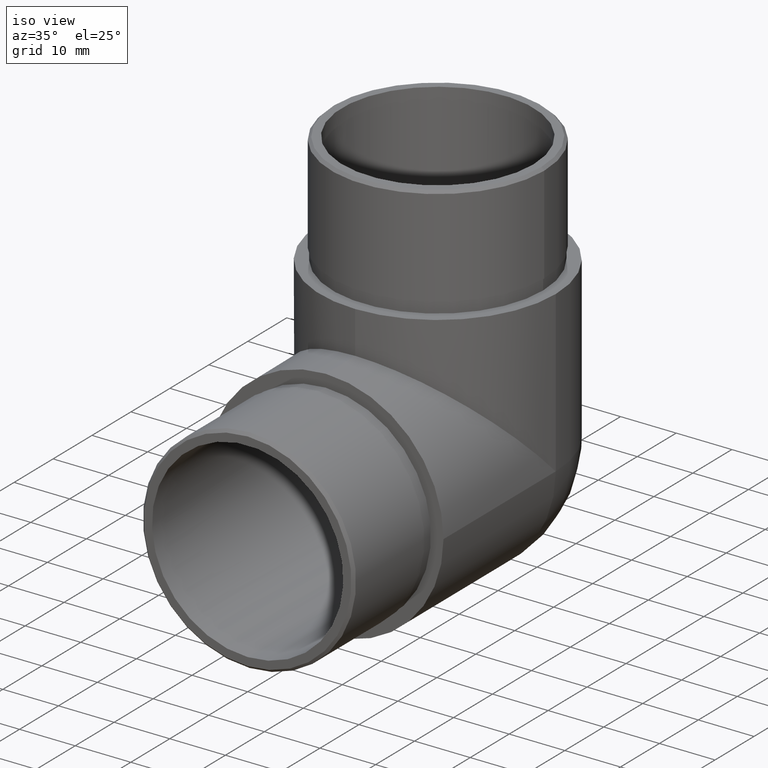
[diagram: clean part render]
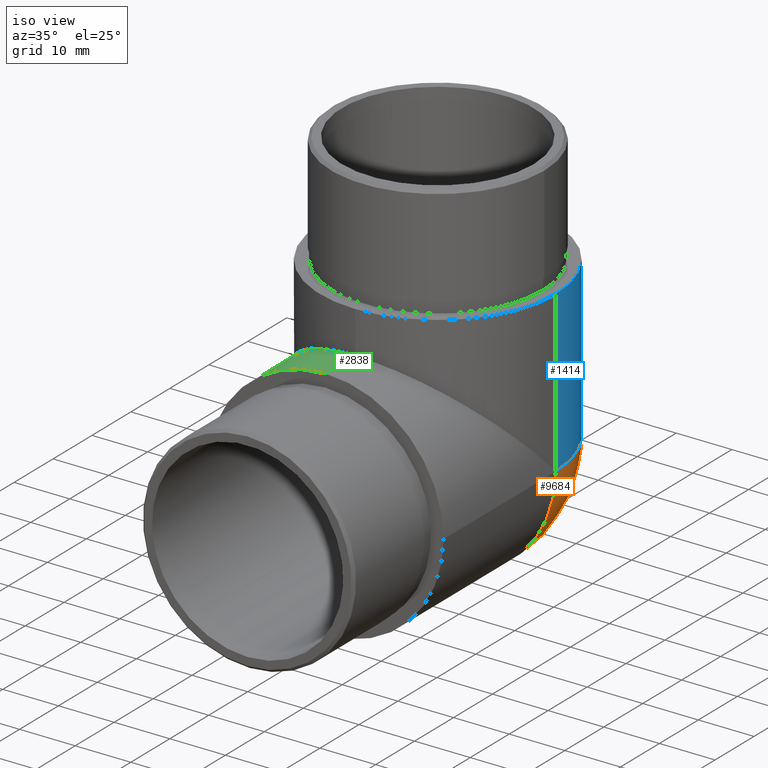
[diagram: same view with three faces highlighted in distinct colors, each labeled with its STEP entity id]
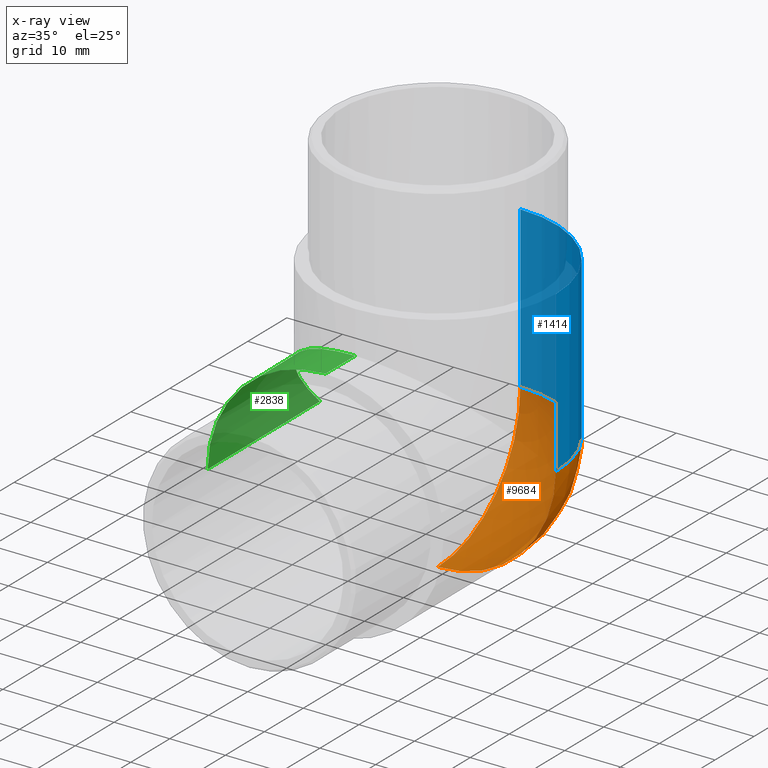
[diagram: x-ray of the same camera — body ghosted, the three highlighted faces saturated]
A machine part, iso view with three faces highlighted in distinct colors.
The next image is the same camera in x-ray (body ghosted, the three faces saturated) — at least one of them is partly hidden behind the body in this view.
Their STEP definitions:

[orange] entity #9684 — the highlighted spherical surface has radius 21.2 mm.
#91 = CARTESIAN_POINT ( 'NONE',  ( -6.938893903907228400E-015, 50.00000000000000000, 21.19999999999999600 ) ) ;
#791 = CIRCLE ( 'NONE', #8991, 21.19999999999999900 ) ;
#1215 = CIRCLE ( 'NONE', #9865, 21.19999999999999900 ) ;
#1295 = DIRECTION ( 'NONE',  ( 0.0000000000000000000, 0.0000000000000000000, 1.000000000000000000 ) ) ;
#1344 = DIRECTION ( 'NONE',  ( -1.000000000000000000, 0.0000000000000000000, -3.273063162220390800E-016 ) ) ;
#1373 = CARTESIAN_POINT ( 'NONE',  ( 0.0000000000000000000, 28.80000000000000800, 21.19999999999999600 ) ) ;
#1689 = AXIS2_PLACEMENT_3D ( 'NONE', #5706, #9517, #1835 ) ;
#1727 = FACE_OUTER_BOUND ( 'NONE', #11694, .T. ) ;
#1835 = DIRECTION ( 'NONE',  ( 0.0000000000000000000, 0.0000000000000000000, -1.000000000000000000 ) ) ;
#1916 = ORIENTED_EDGE ( 'NONE', *, *, #7499, .T. ) ;
#2267 = ORIENTED_EDGE ( 'NONE', *, *, #7500, .F. ) ;
#3635 = ORIENTED_EDGE ( 'NONE', *, *, #4048, .T. ) ;
#4048 = EDGE_CURVE ( 'NONE', #8257, #6328, #8404, .T. ) ;
#4080 = CARTESIAN_POINT ( 'NONE',  ( -6.938893903907228400E-015, 28.80000000000000800, 21.20000000000000300 ) ) ;
#5706 = CARTESIAN_POINT ( 'NONE',  ( 0.0000000000000000000, 28.80000000000000800, 21.19999999999999600 ) ) ;
#6170 = CARTESIAN_POINT ( 'NONE',  ( 3.469446951953614200E-015, 28.80000000000000800, 2.063529856563289800E-015 ) ) ;
#6328 = VERTEX_POINT ( 'NONE', #91 ) ;
#6467 = CARTESIAN_POINT ( 'NONE',  ( 21.19999999999999600, 28.80000000000001100, 21.19999999999999900 ) ) ;
#6910 = DIRECTION ( 'NONE',  ( 3.273063162220390800E-016, 0.0000000000000000000, -1.000000000000000000 ) ) ;
#6952 = CARTESIAN_POINT ( 'NONE',  ( -3.469446951953614200E-015, 28.80000000000000400, 21.19999999999999600 ) ) ;
#7060 = SPHERICAL_SURFACE ( 'NONE', #12068, 21.19999999999999900 ) ;
#7499 = EDGE_CURVE ( 'NONE', #6328, #10876, #1215, .T. ) ;
#7500 = EDGE_CURVE ( 'NONE', #8257, #10876, #791, .T. ) ;
#8065 = DIRECTION ( 'NONE',  ( 0.0000000000000000000, 1.000000000000000000, -0.0000000000000000000 ) ) ;
#8257 = VERTEX_POINT ( 'NONE', #6170 ) ;
#8404 = CIRCLE ( 'NONE', #1689, 21.19999999999999900 ) ;
#8781 = DIRECTION ( 'NONE',  ( 0.0000000000000000000, 0.0000000000000000000, -1.000000000000000000 ) ) ;
#8943 = DIRECTION ( 'NONE',  ( 0.0000000000000000000, -1.000000000000000000, 0.0000000000000000000 ) ) ;
#8991 = AXIS2_PLACEMENT_3D ( 'NONE', #4080, #8943, #8781 ) ;
#9517 = DIRECTION ( 'NONE',  ( 1.000000000000000000, 0.0000000000000000000, 0.0000000000000000000 ) ) ;
#9684 = ADVANCED_FACE ( 'NONE', ( #1727 ), #7060, .T. ) ;
#9865 = AXIS2_PLACEMENT_3D ( 'NONE', #6952, #6910, #1344 ) ;
#10876 = VERTEX_POINT ( 'NONE', #6467 ) ;
#11694 = EDGE_LOOP ( 'NONE', ( #3635, #1916, #2267 ) ) ;
#12068 = AXIS2_PLACEMENT_3D ( 'NONE', #1373, #8065, #1295 ) ;

[blue] entity #1414 — the highlighted cylindrical surface (partial cylindrical patch) has radius 21.2 mm, axis along (0, 0, 1).
#91 = CARTESIAN_POINT ( 'NONE',  ( -6.938893903907228400E-015, 50.00000000000000000, 21.19999999999999600 ) ) ;
#1149 = ORIENTED_EDGE ( 'NONE', *, *, #7499, .F. ) ;
#1150 = VERTEX_POINT ( 'NONE', #1578 ) ;
#1203 = LINE ( 'NONE', #4599, #11328 ) ;
#1215 = CIRCLE ( 'NONE', #9865, 21.19999999999999900 ) ;
#1344 = DIRECTION ( 'NONE',  ( -1.000000000000000000, 0.0000000000000000000, -3.273063162220390800E-016 ) ) ;
#1414 = ADVANCED_FACE ( 'NONE', ( #3519 ), #6764, .T. ) ;
#1578 = CARTESIAN_POINT ( 'NONE',  ( -3.469446951953614200E-015, 50.00000000000000000, 50.00000000000000000 ) ) ;
#2483 = DIRECTION ( 'NONE',  ( 1.000000000000000000, 0.0000000000000000000, 0.0000000000000000000 ) ) ;
#2986 = CARTESIAN_POINT ( 'NONE',  ( -3.469446951953614200E-015, 28.80000000000000800, 1.818672477690387500 ) ) ;
#3359 = EDGE_CURVE ( 'NONE', #11824, #1150, #4683, .T. ) ;
#3435 = CARTESIAN_POINT ( 'NONE',  ( -3.469446951953614200E-015, 28.80000000000000800, 50.00000000000000000 ) ) ;
#3519 = FACE_OUTER_BOUND ( 'NONE', #9625, .T. ) ;
#4599 = CARTESIAN_POINT ( 'NONE',  ( 3.469446951953614200E-015, 50.00000000000000000, 2.063529856563289800E-015 ) ) ;
#4683 = CIRCLE ( 'NONE', #7000, 21.19999999999999900 ) ;
#6328 = VERTEX_POINT ( 'NONE', #91 ) ;
#6331 = DIRECTION ( 'NONE',  ( 0.0000000000000000000, 0.0000000000000000000, 1.000000000000000000 ) ) ;
#6467 = CARTESIAN_POINT ( 'NONE',  ( 21.19999999999999600, 28.80000000000001100, 21.19999999999999900 ) ) ;
#6764 = CYLINDRICAL_SURFACE ( 'NONE', #12266, 21.19999999999999900 ) ;
#6910 = DIRECTION ( 'NONE',  ( 3.273063162220390800E-016, 0.0000000000000000000, -1.000000000000000000 ) ) ;
#6952 = CARTESIAN_POINT ( 'NONE',  ( -3.469446951953614200E-015, 28.80000000000000400, 21.19999999999999600 ) ) ;
#7000 = AXIS2_PLACEMENT_3D ( 'NONE', #3435, #8172, #2483 ) ;
#7009 = DIRECTION ( 'NONE',  ( 0.0000000000000000000, 0.0000000000000000000, 1.000000000000000000 ) ) ;
#7499 = EDGE_CURVE ( 'NONE', #6328, #10876, #1215, .T. ) ;
#7766 = DIRECTION ( 'NONE',  ( 0.0000000000000000000, 0.0000000000000000000, 1.000000000000000000 ) ) ;
#7833 = ORIENTED_EDGE ( 'NONE', *, *, #8908, .T. ) ;
#8172 = DIRECTION ( 'NONE',  ( 0.0000000000000000000, 0.0000000000000000000, 1.000000000000000000 ) ) ;
#8908 = EDGE_CURVE ( 'NONE', #6328, #1150, #1203, .T. ) ;
#8964 = CARTESIAN_POINT ( 'NONE',  ( 21.19999999999999600, 28.80000000000000800, 1.818672477690387500 ) ) ;
#9160 = ORIENTED_EDGE ( 'NONE', *, *, #3359, .F. ) ;
#9430 = DIRECTION ( 'NONE',  ( 1.000000000000000000, 0.0000000000000000000, 0.0000000000000000000 ) ) ;
#9625 = EDGE_LOOP ( 'NONE', ( #1149, #7833, #9160, #11969 ) ) ;
#9865 = AXIS2_PLACEMENT_3D ( 'NONE', #6952, #6910, #1344 ) ;
#10469 = LINE ( 'NONE', #8964, #11074 ) ;
#10876 = VERTEX_POINT ( 'NONE', #6467 ) ;
#10935 = CARTESIAN_POINT ( 'NONE',  ( 21.19999999999999600, 28.80000000000000800, 50.00000000000000000 ) ) ;
#11074 = VECTOR ( 'NONE', #7009, 1000.000000000000000 ) ;
#11328 = VECTOR ( 'NONE', #6331, 1000.000000000000000 ) ;
#11726 = EDGE_CURVE ( 'NONE', #10876, #11824, #10469, .T. ) ;
#11824 = VERTEX_POINT ( 'NONE', #10935 ) ;
#11969 = ORIENTED_EDGE ( 'NONE', *, *, #11726, .F. ) ;
#12266 = AXIS2_PLACEMENT_3D ( 'NONE', #2986, #7766, #9430 ) ;

[green] entity #2838 — the highlighted cylindrical surface (partial cylindrical patch) has radius 21.2 mm, axis along (0, -1, 0).
#34 = DIRECTION ( 'NONE',  ( 0.0000000000000000000, 0.0000000000000000000, -1.000000000000000000 ) ) ;
#68 = DIRECTION ( 'NONE',  ( 0.0000000000000000000, -1.000000000000000000, 0.0000000000000000000 ) ) ;
#179 = DIRECTION ( 'NONE',  ( 0.0000000000000000000, 0.0000000000000000000, 1.000000000000000000 ) ) ;
#1120 = ORIENTED_EDGE ( 'NONE', *, *, #10344, .T. ) ;
#1409 = CARTESIAN_POINT ( 'NONE',  ( 3.469446951953614200E-015, 88.76265504461922300, 42.39999999999999100 ) ) ;
#1526 = EDGE_CURVE ( 'NONE', #7019, #6316, #10635, .T. ) ;
#1657 = CARTESIAN_POINT ( 'NONE',  ( -21.19999999999999600, 88.76265504461922300, 21.20000000000000300 ) ) ;
#1834 = CARTESIAN_POINT ( 'NONE',  ( 3.469446951953614200E-015, 0.0000000000000000000, 21.19999999999999600 ) ) ;
#2710 = VERTEX_POINT ( 'NONE', #11998 ) ;
#2838 = ADVANCED_FACE ( 'NONE', ( #8548 ), #6287, .T. ) ;
#2879 = CARTESIAN_POINT ( 'NONE',  ( -21.19999999999999600, 28.80000000000001100, 21.19999999999999200 ) ) ;
#3793 = VECTOR ( 'NONE', #11100, 1000.000000000000000 ) ;
#4541 = LINE ( 'NONE', #1657, #3793 ) ;
#4773 = CARTESIAN_POINT ( 'NONE',  ( -21.19999999999999200, 16.38132752230962600, 33.61867247769037400 ) ) ;
#4911 = CARTESIAN_POINT ( 'NONE',  ( -21.19999999999999600, 0.0000000000000000000, 21.20000000000000300 ) ) ;
#5548 =( BOUNDED_CURVE ( )  B_SPLINE_CURVE ( 3, ( #12301, #6653, #4773, #2879 ),
 .UNSPECIFIED., .F., .F. ) 
 B_SPLINE_CURVE_WITH_KNOTS ( ( 4, 4 ),
 ( 2.454797371665293100E-016, 1.570796326794896800 ),
 .UNSPECIFIED. ) 
 CURVE ( )  GEOMETRIC_REPRESENTATION_ITEM ( )  RATIONAL_B_SPLINE_CURVE ( ( 1.000000000000000000, 0.8047378541243649400, 0.8047378541243649400, 1.000000000000000000 ) ) 
 REPRESENTATION_ITEM ( '' )  );
#5839 = ORIENTED_EDGE ( 'NONE', *, *, #9565, .T. ) ;
#6240 = EDGE_CURVE ( 'NONE', #8617, #7019, #9408, .T. ) ;
#6287 = CYLINDRICAL_SURFACE ( 'NONE', #11960, 21.19999999999999900 ) ;
#6316 = VERTEX_POINT ( 'NONE', #4911 ) ;
#6426 = AXIS2_PLACEMENT_3D ( 'NONE', #1834, #10393, #179 ) ;
#6641 = ORIENTED_EDGE ( 'NONE', *, *, #6240, .F. ) ;
#6653 = CARTESIAN_POINT ( 'NONE',  ( -12.41867247769038200, 7.600000000000012100, 42.39999999999998400 ) ) ;
#7019 = VERTEX_POINT ( 'NONE', #11518 ) ;
#8206 = EDGE_LOOP ( 'NONE', ( #1120, #12055, #6641, #5839 ) ) ;
#8548 = FACE_OUTER_BOUND ( 'NONE', #8206, .T. ) ;
#8617 = VERTEX_POINT ( 'NONE', #10629 ) ;
#8848 = DIRECTION ( 'NONE',  ( 0.0000000000000000000, -1.000000000000000000, 0.0000000000000000000 ) ) ;
#9408 = LINE ( 'NONE', #1409, #10444 ) ;
#9565 = EDGE_CURVE ( 'NONE', #8617, #2710, #5548, .T. ) ;
#10344 = EDGE_CURVE ( 'NONE', #2710, #6316, #4541, .T. ) ;
#10393 = DIRECTION ( 'NONE',  ( -0.0000000000000000000, -1.000000000000000000, -0.0000000000000000000 ) ) ;
#10444 = VECTOR ( 'NONE', #8848, 1000.000000000000000 ) ;
#10629 = CARTESIAN_POINT ( 'NONE',  ( -1.734723475976807100E-015, 7.600000000000009400, 42.39999999999999100 ) ) ;
#10635 = CIRCLE ( 'NONE', #6426, 21.19999999999999600 ) ;
#11100 = DIRECTION ( 'NONE',  ( -0.0000000000000000000, -1.000000000000000000, 0.0000000000000000000 ) ) ;
#11455 = CARTESIAN_POINT ( 'NONE',  ( 3.469446951953614200E-015, 88.76265504461922300, 21.19999999999999600 ) ) ;
#11518 = CARTESIAN_POINT ( 'NONE',  ( 3.469446951953614200E-015, 0.0000000000000000000, 42.39999999999999100 ) ) ;
#11960 = AXIS2_PLACEMENT_3D ( 'NONE', #11455, #68, #34 ) ;
#11998 = CARTESIAN_POINT ( 'NONE',  ( -21.19999999999999600, 28.80000000000001100, 21.19999999999999200 ) ) ;
#12055 = ORIENTED_EDGE ( 'NONE', *, *, #1526, .F. ) ;
#12301 = CARTESIAN_POINT ( 'NONE',  ( -1.734723475976807100E-015, 7.600000000000009400, 42.39999999999999100 ) ) ;